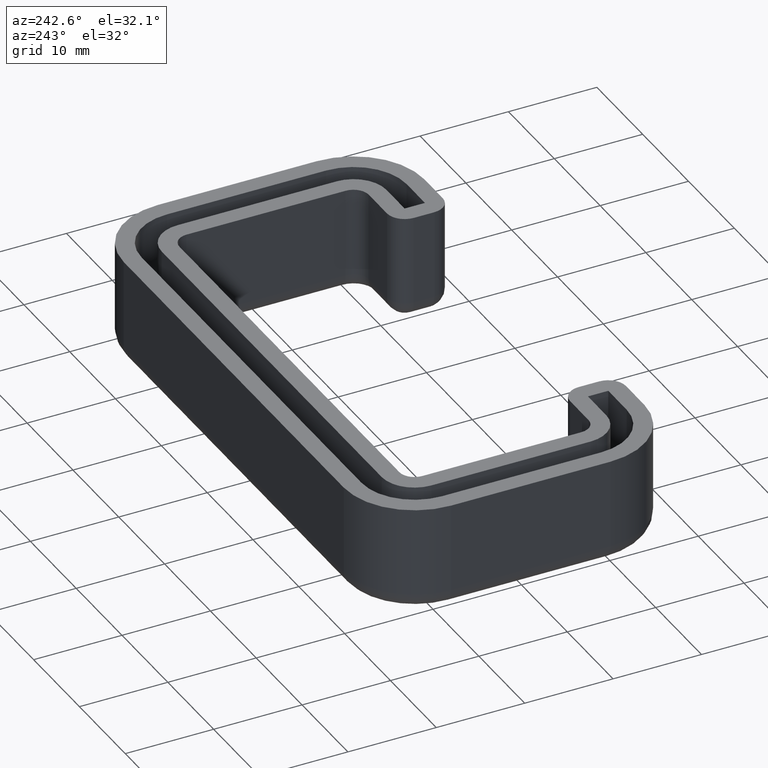
[diagram: clean part render]
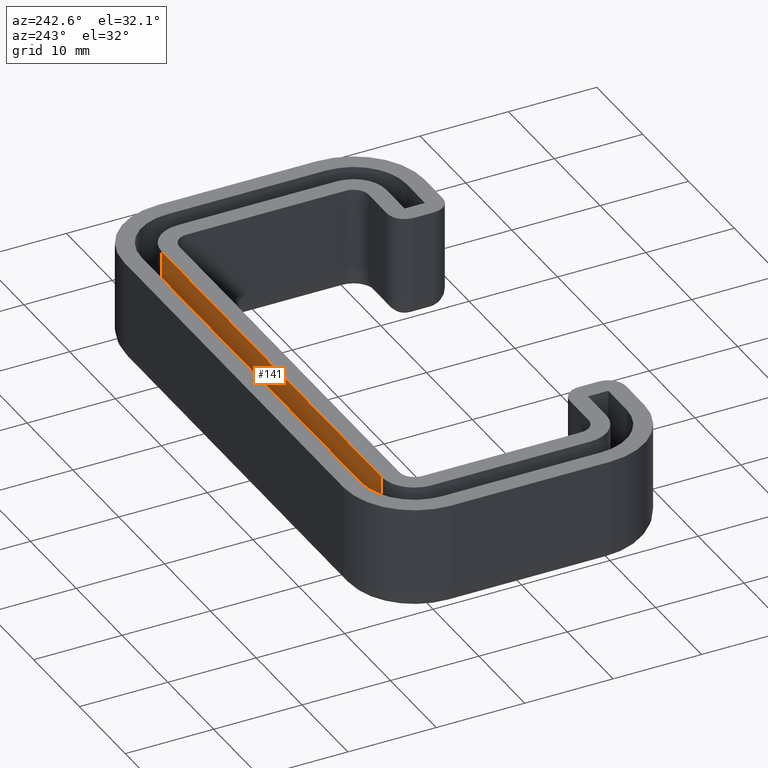
[diagram: same view with one face highlighted and labeled with its STEP entity id]
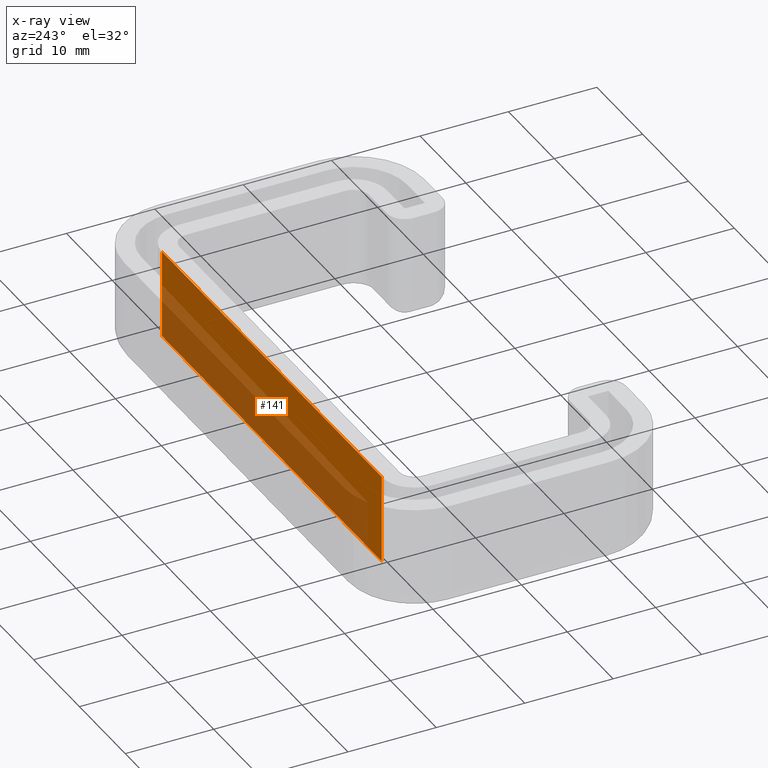
[diagram: x-ray of the same camera — body ghosted, the highlighted face saturated]
A machine part, auxiliary view. The second image highlights one B-rep face of the part: STEP entity #141.
The next image is the same camera in x-ray: the body ghosted, the highlighted face saturated — about 53% of this face is hidden behind the body in this view.
In plain terms, the highlighted planar face has unit normal (0, 1, 0).
Its self-contained STEP definition (entity closure, byte-faithful):
#141 = ADVANCED_FACE( '', ( #280 ), #281, .T. );
#280 = FACE_OUTER_BOUND( '', #423, .T. );
#281 = PLANE( '', #424 );
#423 = EDGE_LOOP( '', ( #963, #964, #965, #966 ) );
#424 = AXIS2_PLACEMENT_3D( '', #967, #968, #969 );
#963 = ORIENTED_EDGE( '', *, *, #1025, .T. );
#964 = ORIENTED_EDGE( '', *, *, #1047, .T. );
#965 = ORIENTED_EDGE( '', *, *, #1053, .T. );
#966 = ORIENTED_EDGE( '', *, *, #1168, .T. );
#967 = CARTESIAN_POINT( '', ( -27.7000000000017, 12.7000000000008, 90.0000000000000 ) );
#968 = DIRECTION( '', ( 0.000000000000000, 1.00000000000000, 0.000000000000000 ) );
#969 = DIRECTION( '', ( 1.00000000000000, 0.000000000000000, 0.000000000000000 ) );
#1025 = EDGE_CURVE( '', #1229, #1227, #1230, .T. );
#1047 = EDGE_CURVE( '', #1227, #1269, #1271, .T. );
#1053 = EDGE_CURVE( '', #1269, #1281, #1283, .T. );
#1168 = EDGE_CURVE( '', #1281, #1229, #1452, .T. );
#1227 = VERTEX_POINT( '', #1524 );
#1229 = VERTEX_POINT( '', #1526 );
#1230 = LINE( '', #1527, #1528 );
#1269 = VERTEX_POINT( '', #1581 );
#1271 = LINE( '', #1583, #1584 );
#1281 = VERTEX_POINT( '', #1597 );
#1283 = LINE( '', #1599, #1600 );
#1452 = LINE( '', #1834, #1835 );
#1524 = CARTESIAN_POINT( '', ( 23.9999999999983, 12.7000000000008, -5.20417042793042E-015 ) );
#1526 = CARTESIAN_POINT( '', ( -24.0000000000017, 12.7000000000008, -5.20417042793042E-015 ) );
#1527 = CARTESIAN_POINT( '', ( -24.0000000000000, 12.7000000000008, -3.46944695195361E-015 ) );
#1528 = VECTOR( '', #1901, 1000.00000000000 );
#1581 = CARTESIAN_POINT( '', ( 23.9999999999983, 12.7000000000008, -10.0000000000000 ) );
#1583 = CARTESIAN_POINT( '', ( 23.9999999999983, 12.7000000000008, 90.0000000000000 ) );
#1584 = VECTOR( '', #1937, 1000.00000000000 );
#1597 = CARTESIAN_POINT( '', ( -24.0000000000017, 12.7000000000008, -10.0000000000000 ) );
#1599 = CARTESIAN_POINT( '', ( -13.8500000000008, 12.7000000000008, -10.0000000000000 ) );
#1600 = VECTOR( '', #1947, 1000.00000000000 );
#1834 = CARTESIAN_POINT( '', ( -24.0000000000017, 12.7000000000008, 90.0000000000000 ) );
#1835 = VECTOR( '', #2160, 1000.00000000000 );
#1901 = DIRECTION( '', ( 1.00000000000000, 0.000000000000000, 0.000000000000000 ) );
#1937 = DIRECTION( '', ( 0.000000000000000, 0.000000000000000, -1.00000000000000 ) );
#1947 = DIRECTION( '', ( -1.00000000000000, 0.000000000000000, 0.000000000000000 ) );
#2160 = DIRECTION( '', ( 0.000000000000000, 0.000000000000000, 1.00000000000000 ) );